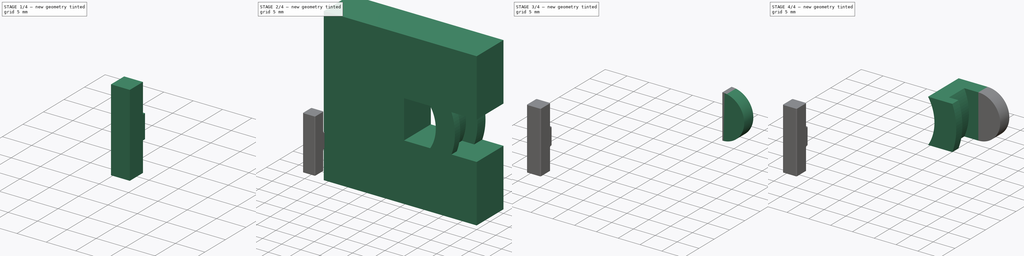
[diagram: build sequence overview — one tinted view per stage of 4, left to right]
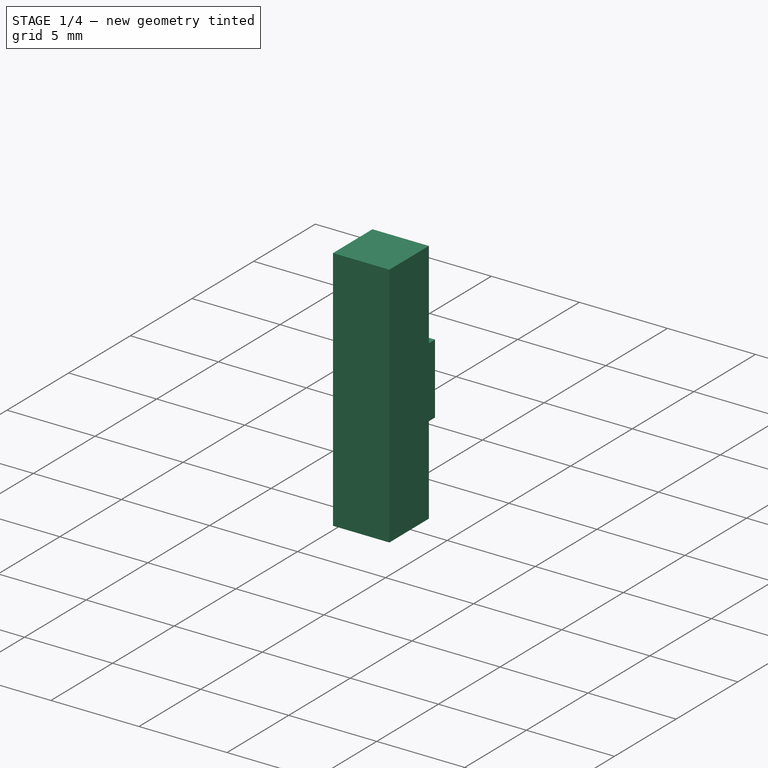
[diagram: stage 1 of 4 — iso view after this stage's code; geometry added in this stage tinted green]
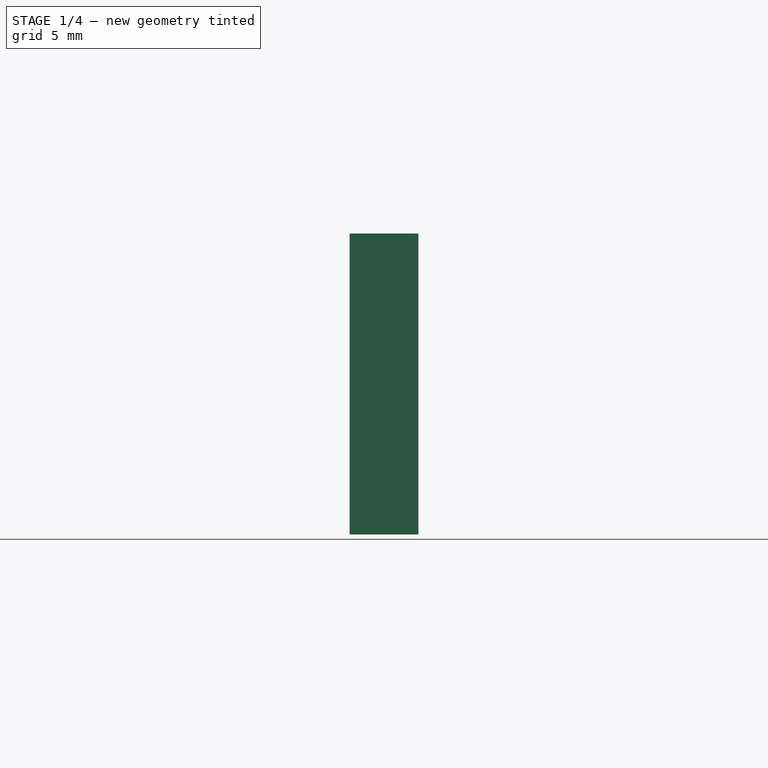
[diagram: stage 1 of 4 — front view after this stage's code; geometry added in this stage tinted green]
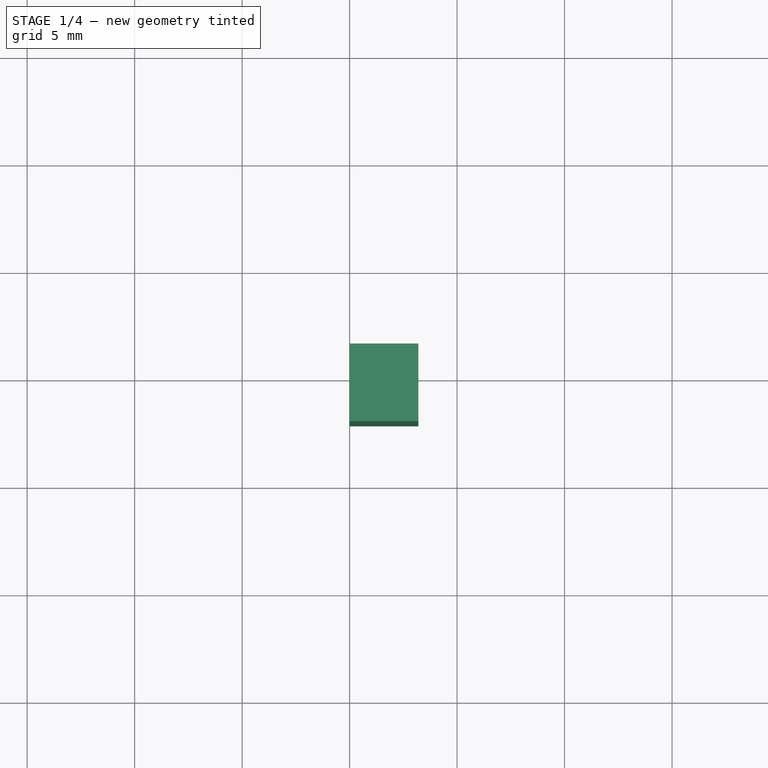
[diagram: stage 1 of 4 — top view after this stage's code; geometry added in this stage tinted green]
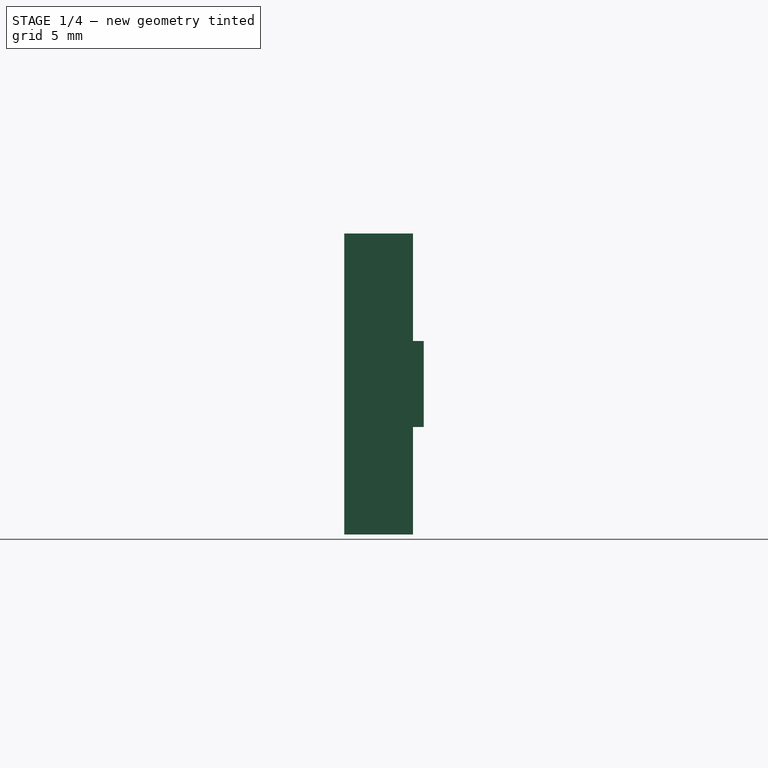
[diagram: stage 1 of 4 — right view after this stage's code; geometry added in this stage tinted green]
FCSTD DOCUMENT  (FreeCAD 0.19R22894 (Git))
Label: magnet_holder
License: All rights reserved
LicenseURL: http://en.wikipedia.org/wiki/All_rights_reserved
objects: Sketcher::SketchObject×8, Part::Extrusion×5, App::Part×3, Part::Cut×2, PartDesign::Body×2, Part::Revolution×1, Part::Fuse×1, PartDesign::FeatureBase×1, PartDesign::Fillet×1, PartDesign::CoordinateSystem×1
note: 23 computed .brp shape members not serialized (recipe doc carries the construction recipe); baked Part::Feature solids carry a one-line shape summary decoded from their .brp

FEATURE [App::Part] Part001  label="Upper tube"
  Origin = -> Origin001
FEATURE [Sketcher::SketchObject] Sketch005
  Placement = pos=(0,0,0) rot=(1,0,0;1.5708rad)
  sketch-geometry (5):
    g0: ArcOfCircle CenterX=-20 CenterY=0 CenterZ=0 NormalX=0 NormalY=0 NormalZ=1 AngleXU=0 Radius=11.6 StartAngle=0.543625 EndAngle=5.73956
    g1: LineSegment StartX=-8.4 StartY=0 StartZ=0 EndX=-8.4 EndY=6 EndZ=0
    g2: LineSegment StartX=-8.4 StartY=0 StartZ=0 EndX=-8.4 EndY=-6 EndZ=0
    g3: LineSegment StartX=-8.4 StartY=6 StartZ=0 EndX=-10.0723 EndY=6 EndZ=0
    g4: LineSegment StartX=-8.4 StartY=-6 StartZ=0 EndX=-10.0723 EndY=-6 EndZ=0
  constraints (16):
    c: Diameter(g0) = 23.2
    c: Vertical(g1)
    c: Vertical(g2)
    c: Equal(g1,g2)
    c: PointOnObject(g2,g-1)
    c: PointOnObject(g2,g0)
    c: Horizontal(g3)
    c: Horizontal(g4)
    c: PointOnObject(g0,g-1)
    c: Coincident(g3,g1)
    c: Coincident(g0,g3)
    c: Coincident(g0,g4)
    c: DistanceX(g0,g-1) = 20
    c: Coincident(g2,g1)
    c: Coincident(g4,g2)
    c: DistanceY(g2,g1) = 12
FEATURE [Part::Extrusion] Extrude003
  Base = -> Sketch005
  Dir = (0,-1,0)
  DirMode = 2
  FaceMakerClass = Part::FaceMakerBullseye
  LengthFwd = 10
  LengthRev = 0
  Solid = true
  Symmetric = false
FEATURE [Sketcher::SketchObject] Sketch006
  MapMode = 5
  Placement = pos=(-8.4,0,0) rot=(0.57735,0.57735,0.57735;2.0944rad)
  Support = -> [Extrude003]
  sketch-geometry (9):
    g0: LineSegment StartX=-22.121 StartY=7 StartZ=0 EndX=-18.921 EndY=7 EndZ=0
    g1: LineSegment StartX=-18.921 StartY=-7 StartZ=0 EndX=-22.121 EndY=-7 EndZ=0
    g2: LineSegment StartX=-22.121 StartY=-7 StartZ=0 EndX=-22.121 EndY=7 EndZ=0
    g3: LineSegment [constr] StartX=0 StartY=0 StartZ=0 EndX=-32.0457 EndY=0 EndZ=0
    g4: LineSegment StartX=-18.921 StartY=2 StartZ=0 EndX=-18.421 EndY=2 EndZ=0
    g5: LineSegment StartX=-18.421 StartY=2 StartZ=0 EndX=-18.421 EndY=-2 EndZ=0
    g6: LineSegment StartX=-18.421 StartY=-2 StartZ=0 EndX=-18.921 EndY=-2 EndZ=0
    g7: LineSegment StartX=-18.921 StartY=7 StartZ=0 EndX=-18.921 EndY=2 EndZ=0
    g8: LineSegment StartX=-18.921 StartY=-2 StartZ=0 EndX=-18.921 EndY=-7 EndZ=0
  constraints (24):
    c: Coincident(g1,g2)
    c: Coincident(g2,g0)
    c: Horizontal(g0)
    c: Horizontal(g1)
    c: Vertical(g2)
    c: DistanceY(g1,g0) = 14
    c: DistanceX(g0,g0) = 3.2
    c: Coincident(g3,g-1)
    c: PointOnObject(g3,g-1)
    c: Coincident(g4,g5)
    c: Coincident(g5,g6)
    c: Horizontal(g4)
    c: Horizontal(g6)
    c: Coincident(g7,g0)
    c: Coincident(g7,g4)
    c: Vertical(g7)
    c: Coincident(g8,g6)
    c: Coincident(g8,g1)
    c: Vertical(g8)
    c: Equal(g7,g8)
    c: Equal(g4,g6)
    c: DistanceX(g1,g5) = 3.7
    c: Symmetric(g4,g5,g3)
    c: DistanceY(g5,g5) = 4
FEATURE [Part::Extrusion] Extrude004
  Base = -> Sketch006
  Dir = (1,0,0)
  DirMode = 2
  FaceMakerClass = Part::FaceMakerBullseye
  LengthFwd = 3.2
  LengthRev = -1
  Solid = true
  Symmetric = true
FEATURE [PartDesign::FeatureBase] BaseFeature
  BaseFeature = -> Extrude004
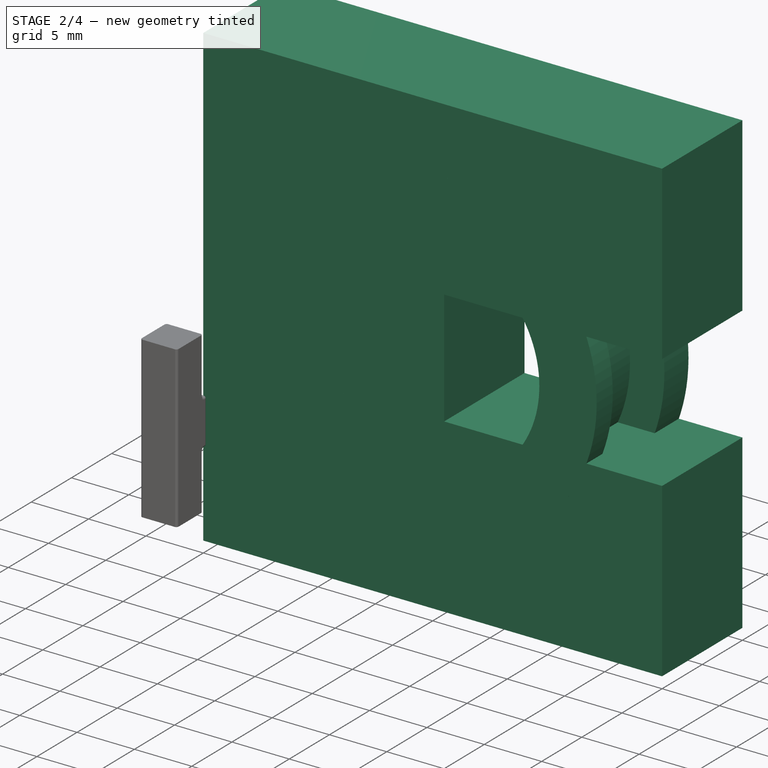
[diagram: stage 2 of 4 — iso view after this stage's code; geometry added in this stage tinted green]
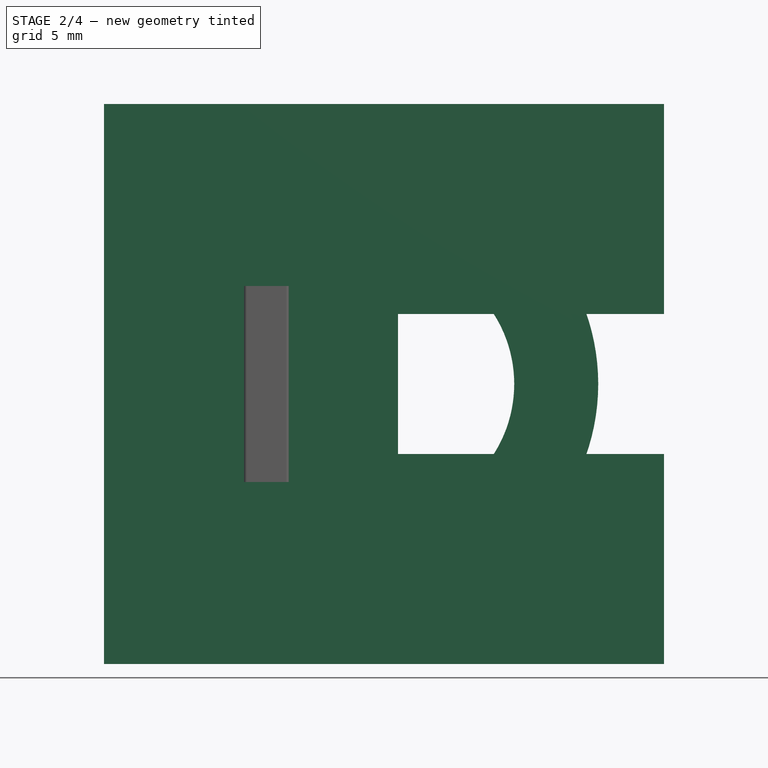
[diagram: stage 2 of 4 — front view after this stage's code; geometry added in this stage tinted green]
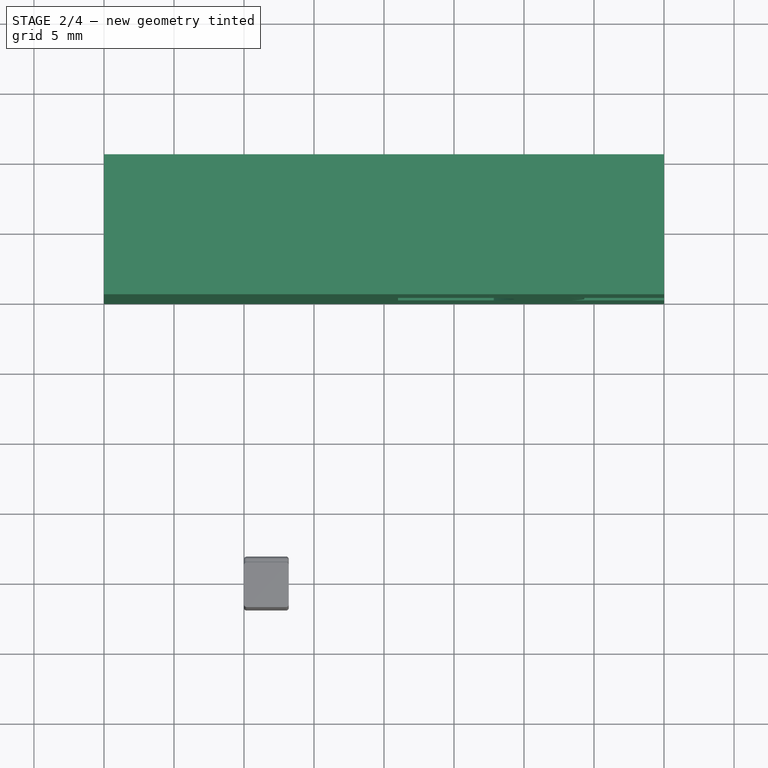
[diagram: stage 2 of 4 — top view after this stage's code; geometry added in this stage tinted green]
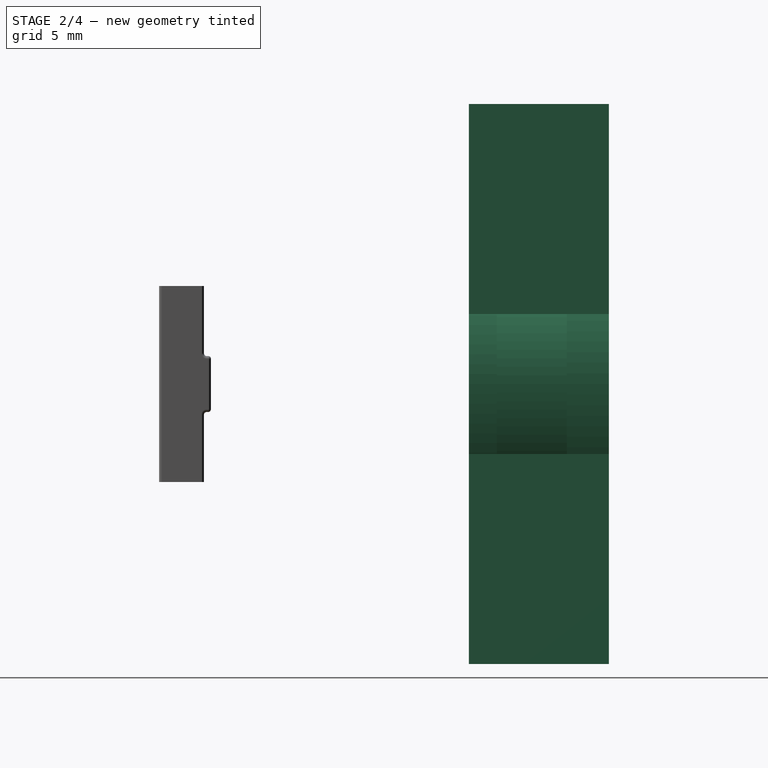
[diagram: stage 2 of 4 — right view after this stage's code; geometry added in this stage tinted green]
FEATURE [Sketcher::SketchObject] Sketch
  sketch-geometry (8):
    g0: LineSegment StartX=9.3 StartY=10 StartZ=0 EndX=9.3 EndY=0 EndZ=0
    g1: LineSegment StartX=9.3 StartY=10 StartZ=0 EndX=15.3 EndY=10 EndZ=0
    g2: LineSegment StartX=15.3 StartY=10 StartZ=0 EndX=15.3 EndY=7 EndZ=0
    g3: LineSegment StartX=15.3 StartY=7 StartZ=0 EndX=12.3 EndY=7 EndZ=0
    g4: LineSegment StartX=12.3 StartY=7 StartZ=0 EndX=12.3 EndY=2 EndZ=0
    g5: LineSegment StartX=12.3 StartY=2 StartZ=0 EndX=14.3 EndY=2 EndZ=0
    g6: LineSegment StartX=14.3 StartY=2 StartZ=0 EndX=14.3 EndY=0 EndZ=0
    g7: LineSegment StartX=14.3 StartY=0 StartZ=0 EndX=9.3 EndY=0 EndZ=0
  constraints (24):
    c: DistanceX(g-1,g0) = 9.3
    c: Vertical(g0)
    c: DistanceY(g-1,g0) = 0
    c: DistanceY(g-1,g0) = 10
    c: Horizontal(g1)
    c: Coincident(g1,g0)
    c: Coincident(g2,g3)
    c: Coincident(g3,g4)
    c: Coincident(g4,g5)
    c: Coincident(g5,g6)
    c: Coincident(g6,g7)
    c: Coincident(g2,g1)
    c: Vertical(g2)
    c: Vertical(g6)
    c: Vertical(g4)
    c: Horizontal(g3)
    c: Horizontal(g5)
    c: Horizontal(g7)
    c: Coincident(g7,g0)
    c: DistanceY(g2,g2) = 3
    c: DistanceY(g4,g4) = 5
    c: DistanceX(g5,g5) = 2
    c: DistanceX(g0,g3) = 3
    c: DistanceX(g1,g1) = 6
FEATURE [Part::Revolution] Revolve
  Angle = 360
  Axis = (0,1,0)
  Base = (0,0,0)
  FaceMakerClass = Part::FaceMakerBullseye
  Solid = true
  Source = -> Sketch
  Symmetric = false
FEATURE [App::Part] Part  label="outside_cut"
  Origin = -> Origin
FEATURE [Sketcher::SketchObject] Sketch002
  Placement = pos=(0,0,0) rot=(1,0,0;1.5708rad)
  sketch-geometry (9):
    g0: LineSegment StartX=1 StartY=5 StartZ=0 EndX=20 EndY=5 EndZ=0
    g1: LineSegment StartX=20 StartY=5 StartZ=0 EndX=20 EndY=20 EndZ=0
    g2: LineSegment StartX=20 StartY=20 StartZ=0 EndX=-20 EndY=20 EndZ=0
    g3: LineSegment StartX=-20 StartY=20 StartZ=0 EndX=-20 EndY=-20 EndZ=0
    g4: LineSegment StartX=-20 StartY=-20 StartZ=0 EndX=20 EndY=-20 EndZ=0
    g5: LineSegment StartX=20 StartY=-20 StartZ=0 EndX=20 EndY=-5 EndZ=0
    g6: LineSegment StartX=20 StartY=-5 StartZ=0 EndX=1 EndY=-5 EndZ=0
    g7: LineSegment StartX=1 StartY=5 StartZ=0 EndX=1 EndY=0 EndZ=0
    g8: LineSegment StartX=1 StartY=0 StartZ=0 EndX=1 EndY=-5 EndZ=0
  constraints (27):
    c: Coincident(g1,g2)
    c: Coincident(g2,g3)
    c: Coincident(g3,g4)
    c: Coincident(g4,g5)
    c: Coincident(g5,g6)
    c: Coincident(g1,g0)
    c: Vertical(g1)
    c: Vertical(g5)
    c: Vertical(g3)
    c: Horizontal(g0)
    c: Horizontal(g2)
    c: Horizontal(g6)
    c: Horizontal(g4)
    c: Equal(g0,g6)
    c: Equal(g5,g1)
    c: Vertical(g8)
    c: Vertical(g7)
    c: Coincident(g8,g6)
    c: Coincident(g8,g7)
    c: PointOnObject(g7,g-1)
    c: Equal(g7,g8)
    c: DistanceY(g5,g0) = 10
    c: Coincident(g7,g0)
    c: Equal(g2,g3)
    c: DistanceX(g-1,g6) = 1
    c: DistanceX(g-1,g5) = 20
    c: DistanceX(g4,g4) = 40
FEATURE [Part::Extrusion] Extrude001
  Base = -> Sketch002
  Dir = (0,-1,0)
  DirMode = 2
  FaceMakerClass = Part::FaceMakerBullseye
  LengthFwd = 10
  LengthRev = 0
  Reversed = true
  Solid = true
  Symmetric = false
FEATURE [PartDesign::Fillet] Fillet
  Base = -> BaseFeature [Edge23,Edge18,Edge19,Edge6,Edge7,Edge24,Edge12,Edge13,Edge14,Edge11,Edge15,Edge16,Edge8,Edge5,Edge9,Edge10]
  BaseFeature = -> BaseFeature
  Radius = 0.2
  SupportTransform = false
FEATURE [PartDesign::CoordinateSystem] Local_CS
  AttacherType = Attacher::AttachEngine3D
  AttachmentOffset = pos=(1.6,0,0) rot=(0,0,1;0rad)
  MapMode = 5
  Placement = pos=(-6.8,1.6,0) rot=(0.57735,0.57735,0.57735;2.0944rad)
  Support = -> [Fillet]
FEATURE [Sketcher::SketchObject] Sketch007
  MapMode = 5
  Placement = pos=(0,0,0) rot=(0.57735,0.57735,0.57735;2.0944rad)
  Support = -> [YZ_Plane003]
FEATURE [PartDesign::Body] Body
  BaseFeature = -> Extrude004
  Group = -> [BaseFeature,Fillet,Local_CS,Sketch007]
  Origin = -> Origin003
  Tip = -> Fillet
FEATURE [Sketcher::SketchObject] Sketch008
  MapMode = 5
  Placement = pos=(0,0,0) rot=(0.57735,0.57735,0.57735;2.0944rad)
  Support = -> [YZ_Plane004]
FEATURE [PartDesign::Body] Body001
  Group = -> [Sketch008]
  Origin = -> Origin004
FEATURE [App::Part] Part002  label="reed switch"
  Group = -> [Body,Body001]
  Origin = -> Origin002
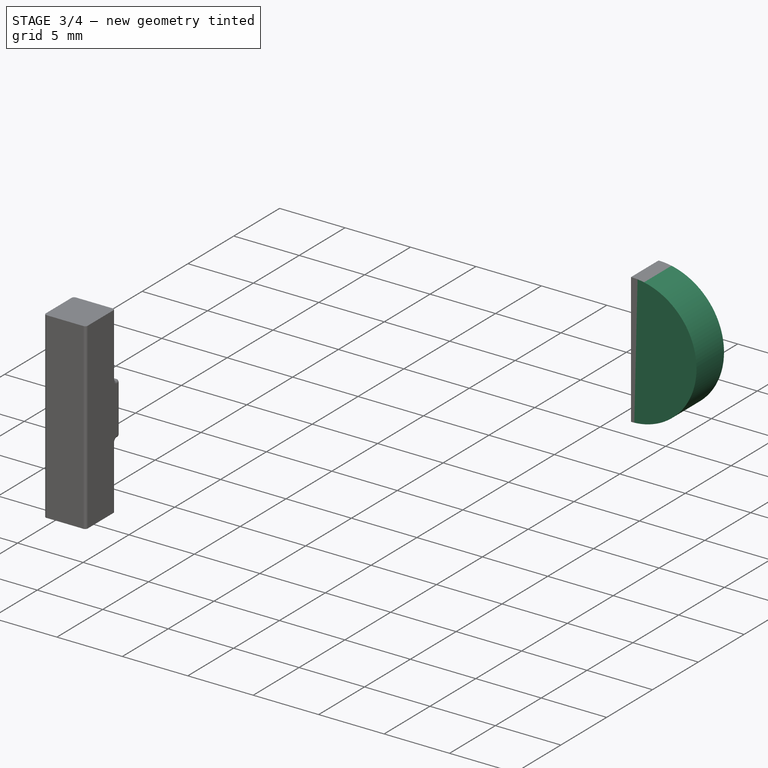
[diagram: stage 3 of 4 — iso view after this stage's code; geometry added in this stage tinted green]
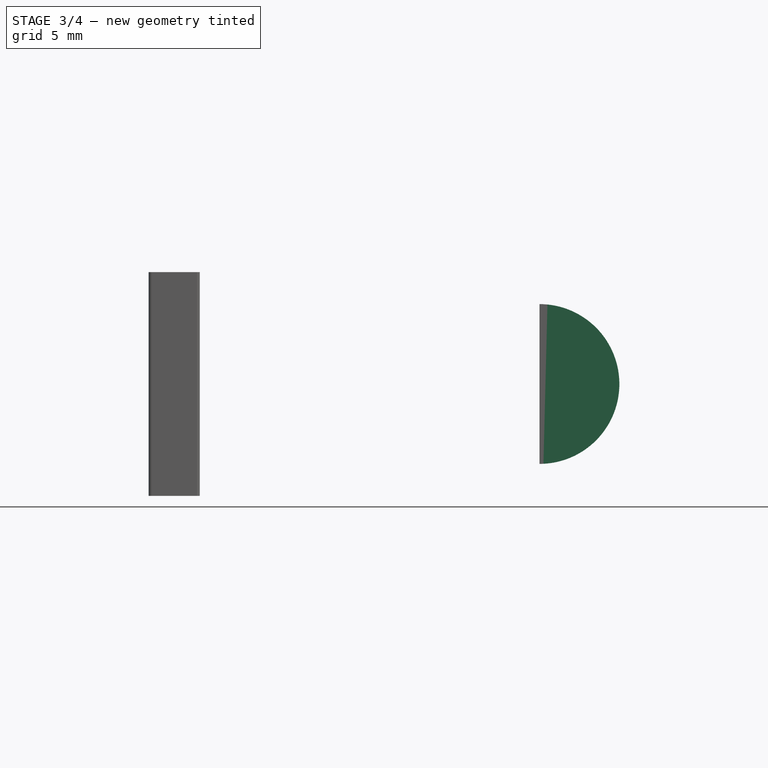
[diagram: stage 3 of 4 — front view after this stage's code; geometry added in this stage tinted green]
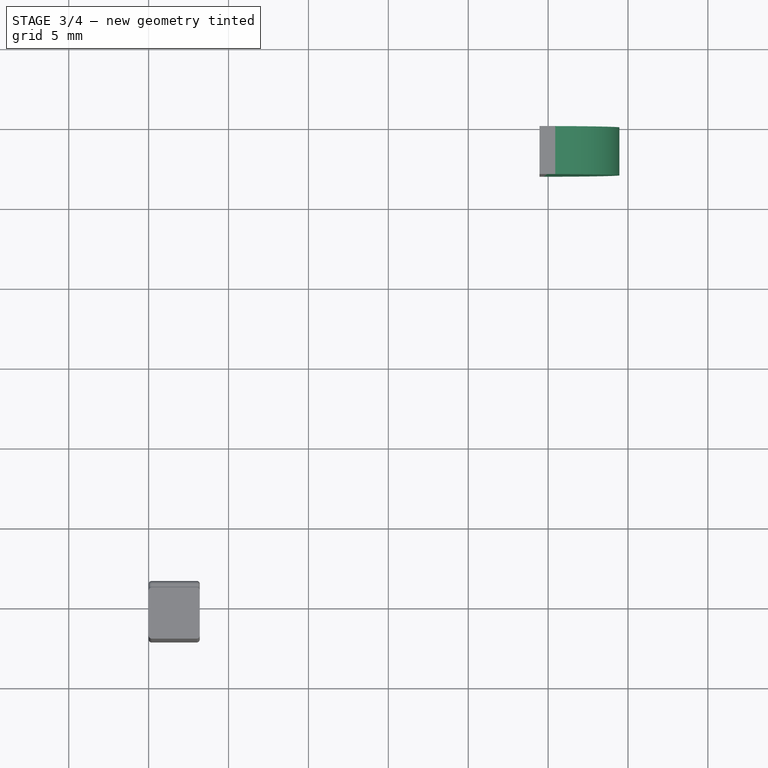
[diagram: stage 3 of 4 — top view after this stage's code; geometry added in this stage tinted green]
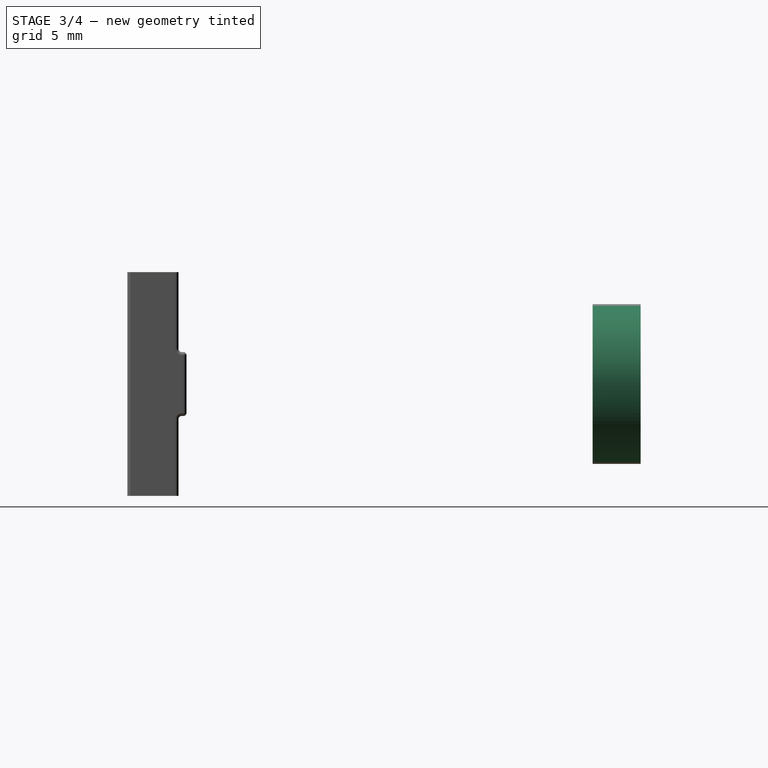
[diagram: stage 3 of 4 — right view after this stage's code; geometry added in this stage tinted green]
FEATURE [Part::Cut] Cut
  Base = -> Revolve
  Tool = -> Extrude001
FEATURE [Sketcher::SketchObject] Sketch003
  ExternalGeometry = -> [Cut]
  MapMode = 5
  Placement = pos=(0,10,0) rot=(0,0.707107,0.707107;3.14159rad)
  Support = -> [Cut]
  sketch-geometry (2):
    g0: ArcOfCircle CenterX=-14.46 CenterY=-3.2e-15 CenterZ=0 NormalX=0 NormalY=0 NormalZ=1 AngleXU=0 Radius=5 StartAngle=1.57079 EndAngle=4.71239
    g1: LineSegment StartX=-14.4599 StartY=5 StartZ=0 EndX=-14.4599 EndY=-5 EndZ=0
  constraints (5):
    c: Coincident(g0,g-6)
    c: Coincident(g0,g-5)
    c: Tangent(g0,g-3)
    c: Coincident(g1,g0)
    c: Coincident(g1,g0)
FEATURE [Part::Extrusion] Extrude
  Base = -> Sketch003
  Dir = (0,-3,0)
  DirLink = -> Cut [Edge13]
  DirMode = 1
  FaceMakerClass = Part::FaceMakerBullseye
  LengthFwd = 0
  LengthRev = 0
  Solid = true
  Symmetric = false
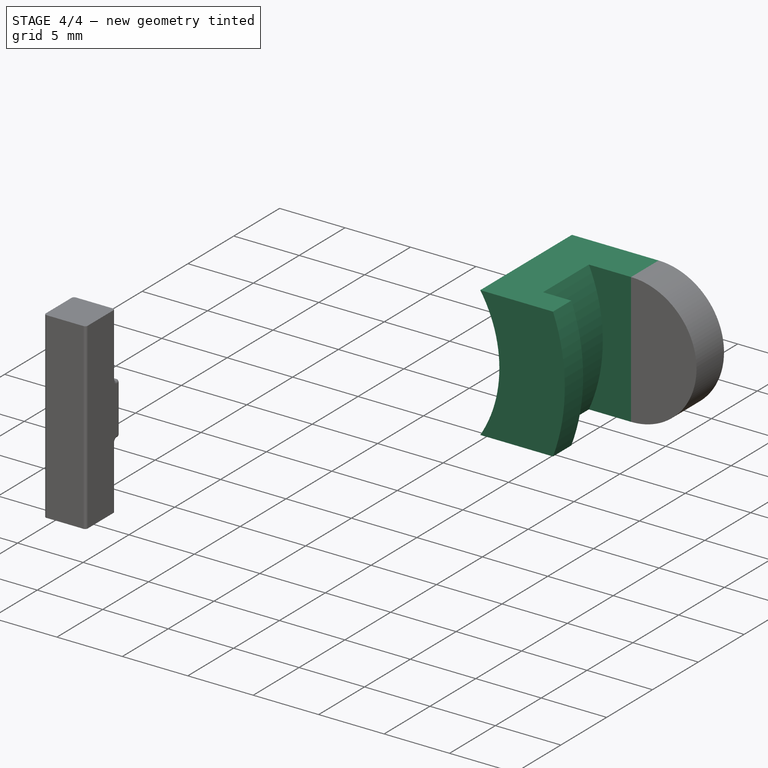
[diagram: stage 4 of 4 — iso view after this stage's code; geometry added in this stage tinted green]
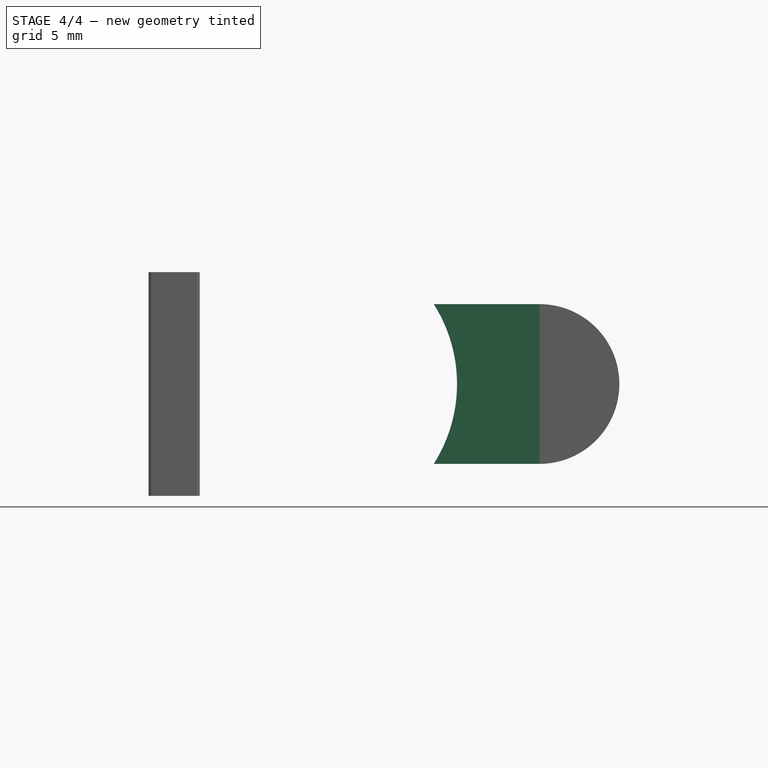
[diagram: stage 4 of 4 — front view after this stage's code; geometry added in this stage tinted green]
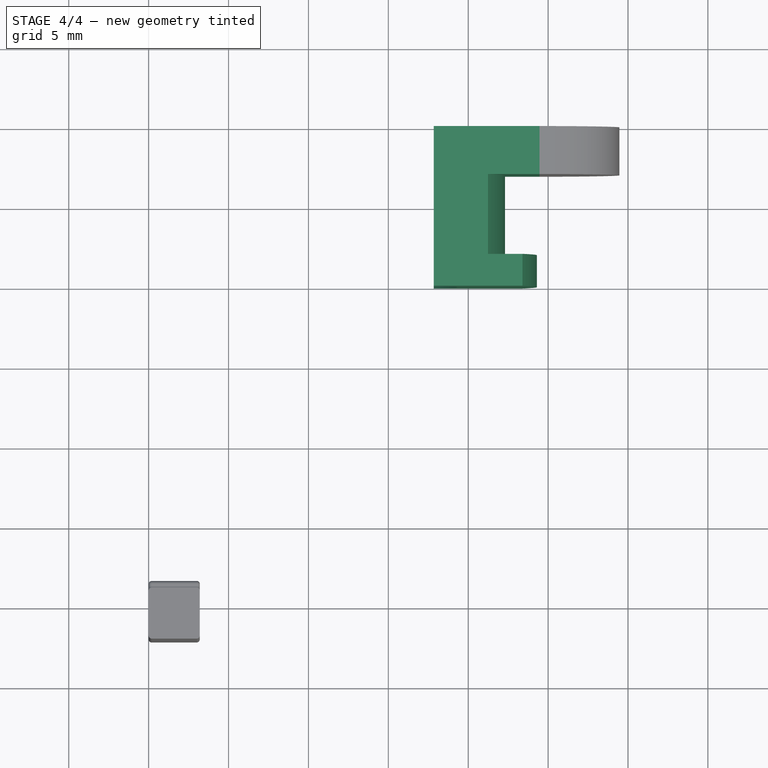
[diagram: stage 4 of 4 — top view after this stage's code; geometry added in this stage tinted green]
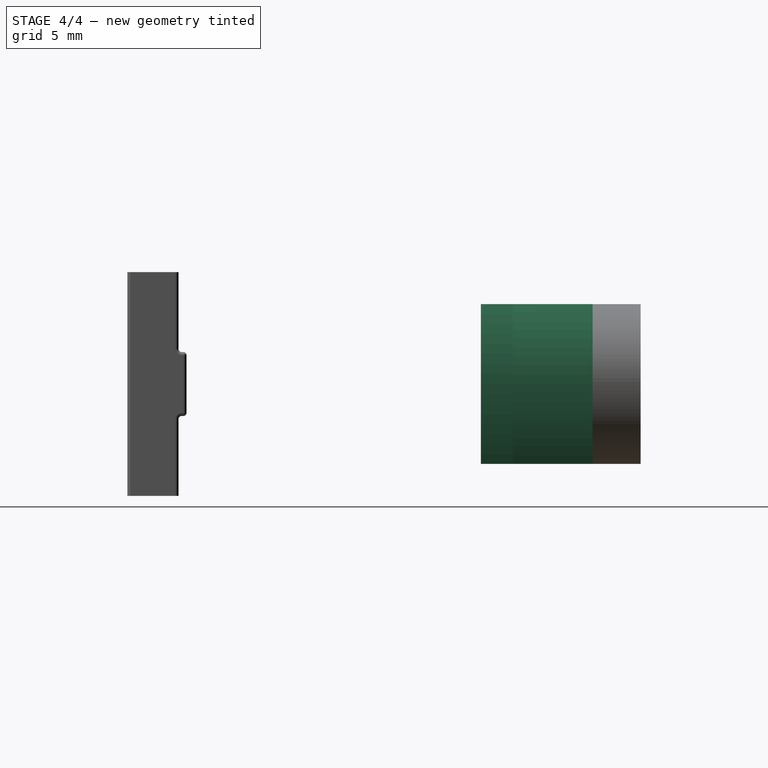
[diagram: stage 4 of 4 — right view after this stage's code; geometry added in this stage tinted green]
FEATURE [Part::Fuse] Fusion
  Base = -> Cut
  Tool = -> Extrude
FEATURE [Sketcher::SketchObject] Sketch004
  ExternalGeometry = -> [Fusion]
  MapMode = 5
  Placement = pos=(0,10,0) rot=(0,0.707107,0.707107;3.14159rad)
  Support = -> [Fusion]
  sketch-geometry (1):
    g0: Circle CenterX=-14.46 CenterY=0 CenterZ=0 NormalX=0 NormalY=0 NormalZ=1 AngleXU=0 Radius=3.55
  constraints (1):
    c: Diameter(g0) = 7.1
FEATURE [Part::Extrusion] Extrude002
  Base = -> Sketch004
  Dir = (0,1,-2e-16)
  DirMode = 2
  FaceMakerClass = Part::FaceMakerBullseye
  LengthFwd = 2
  LengthRev = 0
  Reversed = true
  Solid = true
  Symmetric = false
FEATURE [Part::Cut] Cut001
  Base = -> Fusion
  Tool = -> Extrude002
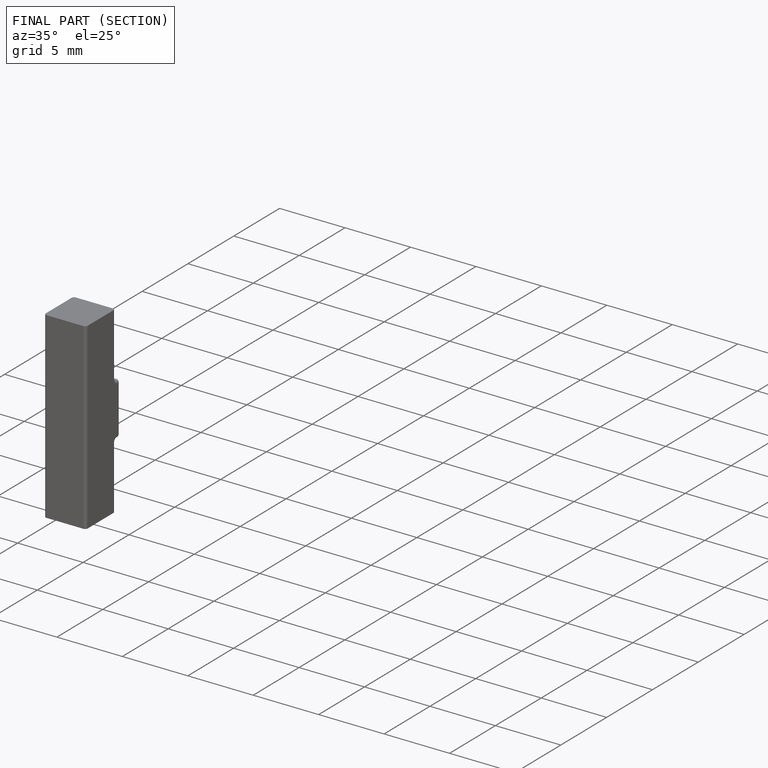
[diagram: finished part — half-section view (interior)]
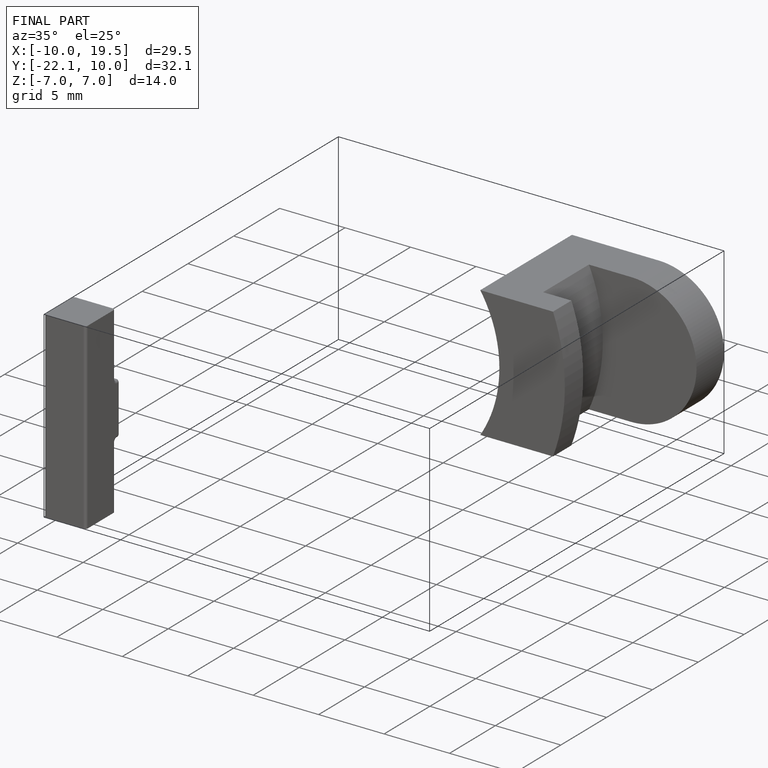
[diagram: finished part — iso view with bounding-box wireframe]
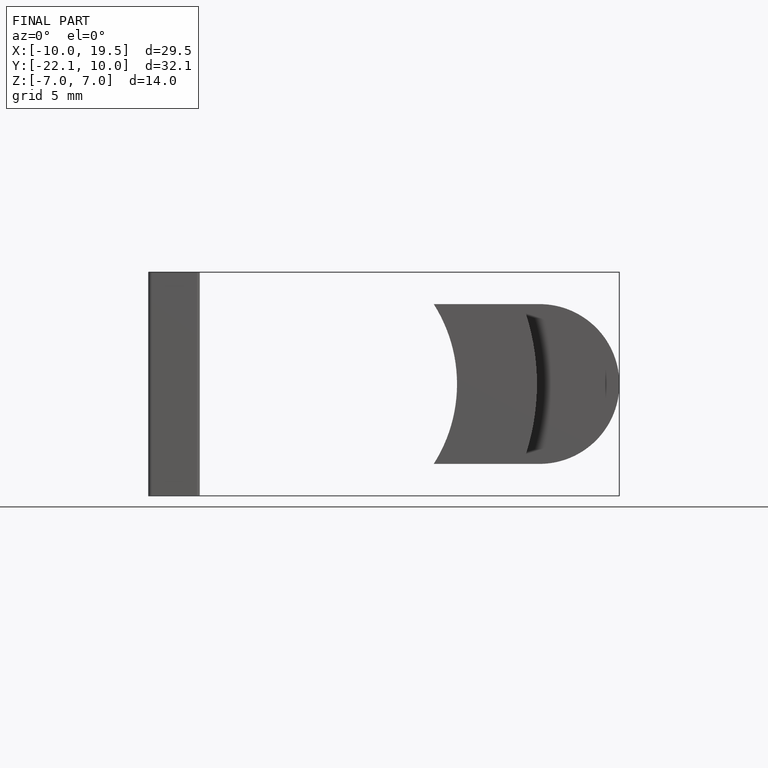
[diagram: finished part — front view with bounding-box wireframe]
